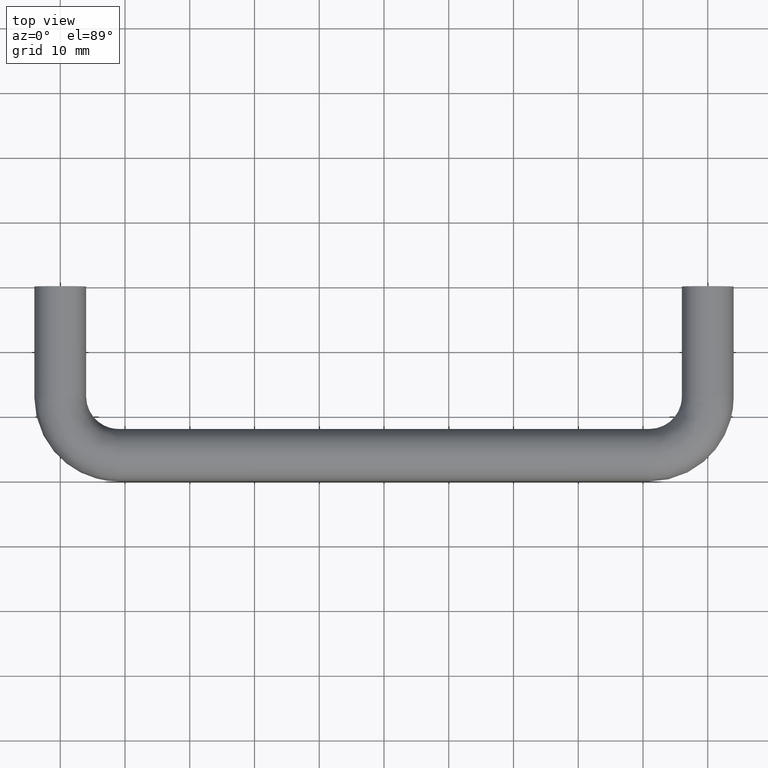
[diagram: clean part render]
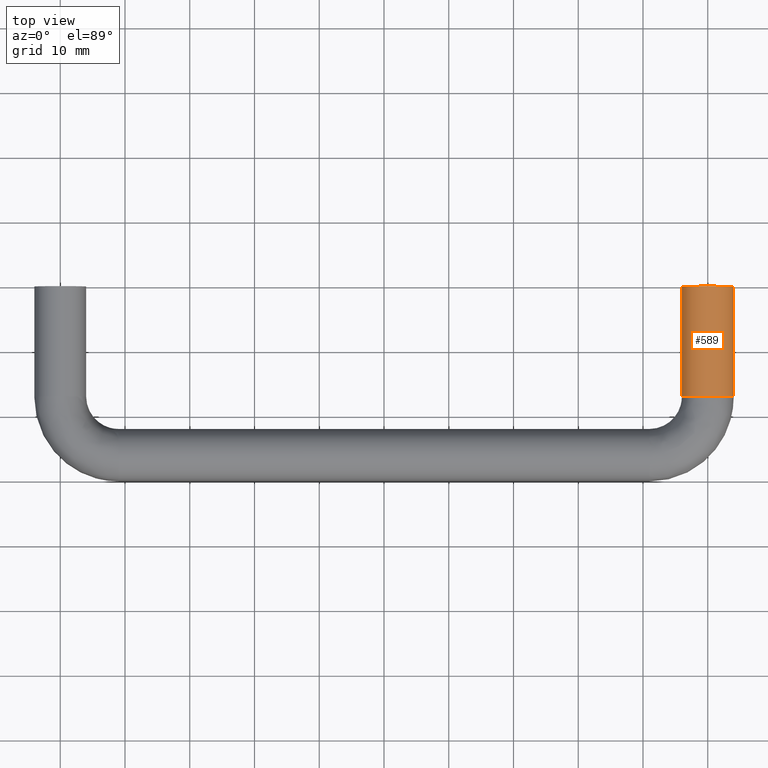
[diagram: same view with one face highlighted and labeled with its STEP entity id]
A machine part, top view. The second image highlights one B-rep face of the part: STEP entity #589.
In plain terms, the highlighted face is a freeform B-spline surface patch.
Its self-contained STEP definition (entity closure, byte-faithful):
#507=CARTESIAN_POINT('',(104.0,0.0,3.0));
#508=VERTEX_POINT('',#507);
#514=CARTESIAN_POINT('',(104.0,-17.0,3.0));
#515=VERTEX_POINT('',#514);
#516=CARTESIAN_POINT('',(104.0,-17.0,3.0));
#517=CARTESIAN_POINT('',(104.0,0.0,3.0));
#518=QUASI_UNIFORM_CURVE('',1,(#516,#517),.UNSPECIFIED.,.F.,.U.);
#519=EDGE_CURVE('',#515,#508,#518,.T.);
#529=CARTESIAN_POINT('',(103.998629299902210,-17.425000000000001,2.895292206768502));
#530=CARTESIAN_POINT('',(103.998629299902210,0.435625000000002,2.895292206768502));
#531=CARTESIAN_POINT('',(104.108968291371610,-17.425000000000008,7.108968291371617));
#532=CARTESIAN_POINT('',(104.108968291371610,0.435625000000002,7.108968291371617));
#533=CARTESIAN_POINT('',(99.895292206768502,-17.425000000000001,6.998629299902234));
#534=CARTESIAN_POINT('',(99.895292206768502,0.435625000000002,6.998629299902234));
#535=CARTESIAN_POINT('',(95.681616122165394,-17.425000000000008,6.888290308432859));
#536=CARTESIAN_POINT('',(95.681616122165394,0.435625000000002,6.888290308432859));
#537=CARTESIAN_POINT('',(96.012330665067481,-17.425000000000001,2.686163617088624));
#538=CARTESIAN_POINT('',(96.012330665067481,0.435625000000002,2.686163617088624));
#546=(BOUNDED_SURFACE()B_SPLINE_SURFACE(1,2,((#529,#531,#533,#535,#537),(#530,#532,#534,#536,#538)),.UNSPECIFIED.,.F.,.F.,.U.)B_SPLINE_SURFACE_WITH_KNOTS((2,2),(3,2,3),(0.0,17.860625000000010),(0.0,6.874142495469383,13.748284990938769),.UNSPECIFIED.)GEOMETRIC_REPRESENTATION_ITEM()RATIONAL_B_SPLINE_SURFACE(((1.0,0.688354575693754,1.0,0.688354575693754,1.0),(1.0,0.688354575693754,1.0,0.688354575693754,1.0)))REPRESENTATION_ITEM('')SURFACE());
#547=ORIENTED_EDGE('',*,*,#519,.T.);
#548=CARTESIAN_POINT('',(96.0,0.0,3.0));
#549=VERTEX_POINT('',#548);
#550=CARTESIAN_POINT('',(96.0,0.0,3.0));
#551=CARTESIAN_POINT('',(96.0,0.0,6.999999999999999));
#552=CARTESIAN_POINT('',(100.0,0.0,7.0));
#553=CARTESIAN_POINT('',(104.000000000000030,0.0,6.999999999999999));
#554=CARTESIAN_POINT('',(104.0,0.0,3.0));
#562=(BOUNDED_CURVE()B_SPLINE_CURVE(2,(#550,#551,#552,#553,#554),.UNSPECIFIED.,.F.,.U.)B_SPLINE_CURVE_WITH_KNOTS((3,2,3),(0.0,0.500000000000000,1.0),.UNSPECIFIED.)CURVE()GEOMETRIC_REPRESENTATION_ITEM()RATIONAL_B_SPLINE_CURVE((1.0,0.707106781186548,1.0,0.707106781186548,1.0))REPRESENTATION_ITEM(''));
#563=EDGE_CURVE('',#549,#508,#562,.T.);
#564=ORIENTED_EDGE('',*,*,#563,.F.);
#565=CARTESIAN_POINT('',(96.0,-17.0,3.0));
#566=VERTEX_POINT('',#565);
#567=CARTESIAN_POINT('',(96.0,-17.0,3.0));
#568=CARTESIAN_POINT('',(96.0,0.0,3.0));
#569=QUASI_UNIFORM_CURVE('',1,(#567,#568),.UNSPECIFIED.,.F.,.U.);
#570=EDGE_CURVE('',#566,#549,#569,.T.);
#571=ORIENTED_EDGE('',*,*,#570,.F.);
#572=CARTESIAN_POINT('',(96.0,-17.0,3.0));
#573=CARTESIAN_POINT('',(96.0,-17.000000000000004,6.999999999999999));
#574=CARTESIAN_POINT('',(100.0,-17.0,7.0));
#575=CARTESIAN_POINT('',(104.000000000000030,-17.000000000000004,6.999999999999999));
#576=CARTESIAN_POINT('',(104.0,-17.0,3.0));
#584=(BOUNDED_CURVE()B_SPLINE_CURVE(2,(#572,#573,#574,#575,#576),.UNSPECIFIED.,.F.,.U.)B_SPLINE_CURVE_WITH_KNOTS((3,2,3),(0.0,0.500000000000000,1.0),.UNSPECIFIED.)CURVE()GEOMETRIC_REPRESENTATION_ITEM()RATIONAL_B_SPLINE_CURVE((1.0,0.707106781186548,1.0,0.707106781186548,1.0))REPRESENTATION_ITEM(''));
#585=EDGE_CURVE('',#566,#515,#584,.T.);
#586=ORIENTED_EDGE('',*,*,#585,.T.);
#587=EDGE_LOOP('',(#547,#564,#571,#586));
#588=FACE_OUTER_BOUND('',#587,.T.);
#589=ADVANCED_FACE('',(#588),#546,.T.);